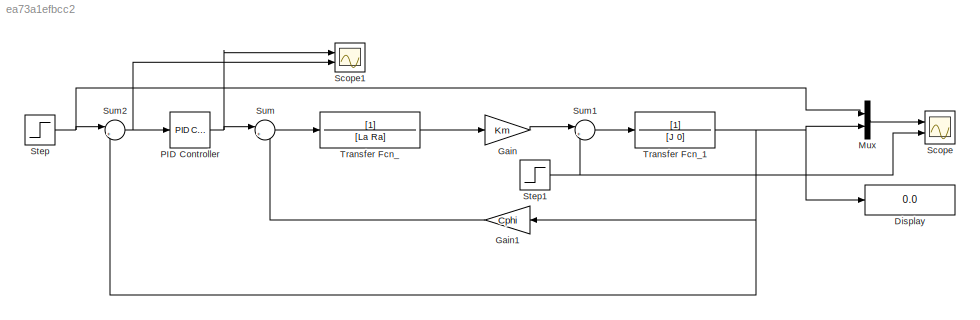
MODEL slx_ea73a1efbcc2
KIND model
CONFIG AbsTol = auto
CONFIG EnableMultiTasking = off
CONFIG FixedStep = 1/1000
CONFIG InitFcn = Km = 0.06;\nRa = 2.5;\nJ = 80.45e-6;\nLa = 75e-3;\nCphi = 0.06;
CONFIG MaxStep = auto
CONFIG MinStep = auto
CONFIG RelTol = 1e-3
CONFIG SampleTimeConstraint = Unconstrained
CONFIG SolverName = FixedStepAuto
CONFIG StartTime = 0.0
CONFIG StopTime = 3
BLOCK [Display] Display
  Decimation = 1
  Ports = [1]
BLOCK [Gain] Gain
  Gain = Km
BLOCK [Gain] Gain1
  Gain = Cphi
  NameLocation = top
BLOCK [Mux] Mux
  DisplayOption = bar
  Inputs = 2
  Ports = [2, 1]
BLOCK [Reference] PID Controller  REF=slpidlib/PID Controller
  Ports = [1, 1]
  SourceBlock = slpidlib/PID Controller
  SourceProductBaseCode = SL
  SourceType = PID 1dof
BLOCK [Scope] Scope
  Floating = off
  NumInputPorts = 2
  Ports = [2]
  ScopeSpecificationString = Simulink.scopes.TimeScopeBlockCfg('CurrentConfiguration', extmgr.ConfigurationSet(extmgr.Configuration('Core','General UI',true),extmgr.Configuration('Core','Source UI',true),extmgr.Configuration('Sources','WiredSimulink',true,'DataLoggingVariableName','ScopeData1'),extmgr.Configuration('Visuals','Time Domain',true,'SerializedDisplays',{struct('MinYLimReal','-561.23975','MaxYLimReal','481.72992','...<+1477ch>
BLOCK [Scope] Scope1
  Floating = off
  NumInputPorts = 2
  Ports = [2]
  ScopeSpecificationString = Simulink.scopes.TimeScopeBlockCfg('CurrentConfiguration', extmgr.ConfigurationSet(extmgr.Configuration('Core','General UI',true),extmgr.Configuration('Core','Source UI',true),extmgr.Configuration('Sources','WiredSimulink',true,'DataLoggingVariableName','ScopeData1'),extmgr.Configuration('Visuals','Time Domain',true,'SerializedDisplays',{struct('MinYLimReal','-52888.28966','MaxYLimReal','73147.9073...<+1437ch>
BLOCK [Step] Step
  After = 166.7
  SampleTime = 0
  Time = 0.5
BLOCK [Step] Step1
  After = 166.7
  SampleTime = 0
  Time = 0.5
BLOCK [Sum] Sum
  Inputs = |+-
  Ports = [2, 1]
BLOCK [Sum] Sum1
  Inputs = |+-
  NameLocation = top
  Ports = [2, 1]
BLOCK [Sum] Sum2
  Inputs = |+-
  Ports = [2, 1]
BLOCK [TransferFcn] Transfer Fcn_
  Denominator = [La Ra]
BLOCK [TransferFcn] Transfer Fcn_1
  Denominator = [J 0]
LINE Gain1:1 -> Sum:2
LINE Gain:1 -> Sum1:1
LINE Mux:1 -> Scope:1
NET PID Controller:1 -> Scope1:1, Sum:1
NET Step1:1 -> Scope:2, Sum1:2
NET Step:1 -> Mux:1, Sum2:1
LINE Sum1:1 -> Transfer Fcn_1:1
NET Sum2:1 -> PID Controller:1, Scope1:2
LINE Sum:1 -> Transfer Fcn_:1
NET Transfer Fcn_1:1 -> Display:1, Gain1:1, Mux:2, Sum2:2
LINE Transfer Fcn_:1 -> Gain:1
note: NET lines group one-source signal fan-out (src -> all destinations, sorted); 1:1 wires keep LINE
